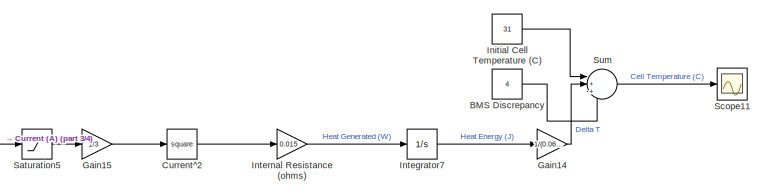
[diagram: root canvas - part 1/4, top center region]
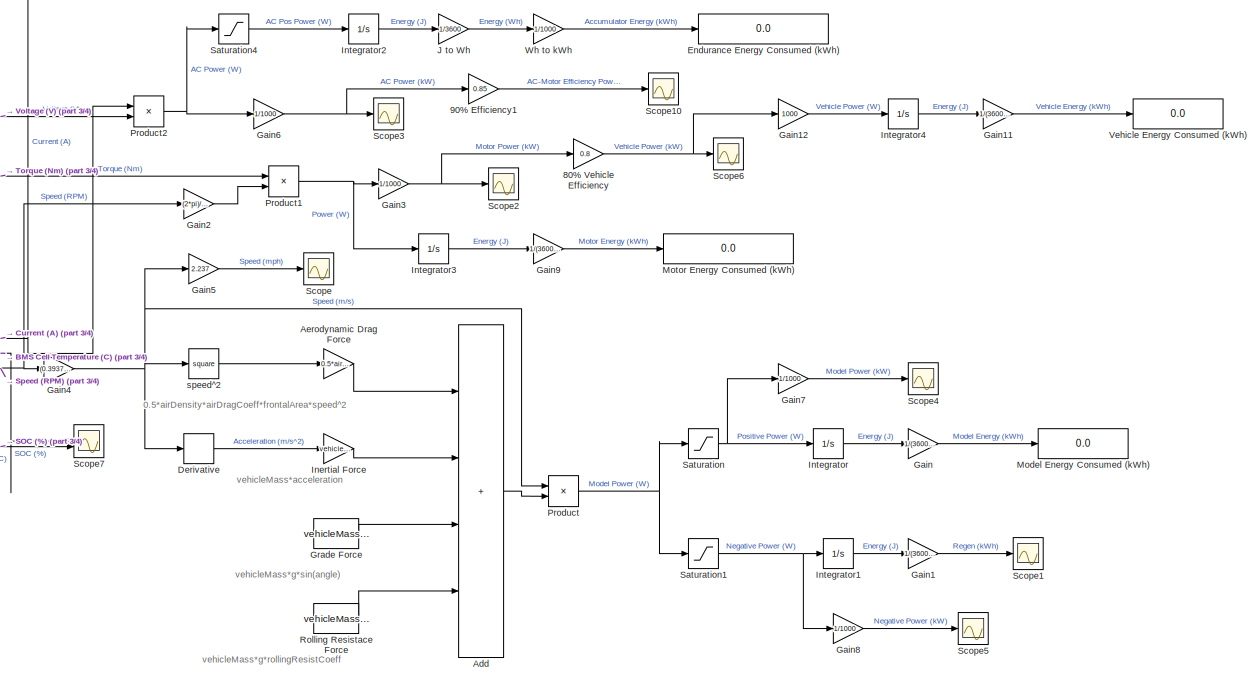
[diagram: root canvas - part 2/4, middle right region]
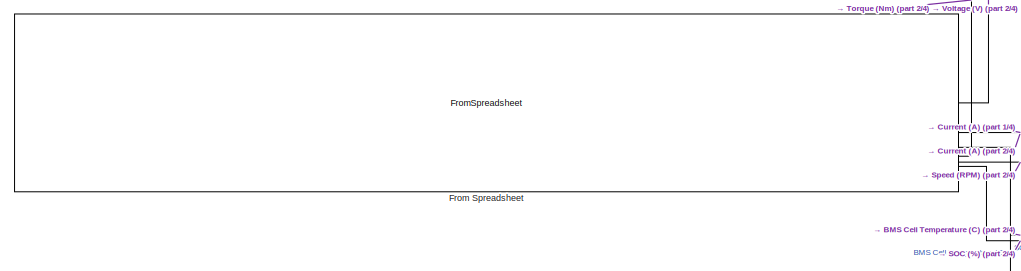
[diagram: root canvas - part 3/4, middle left region]
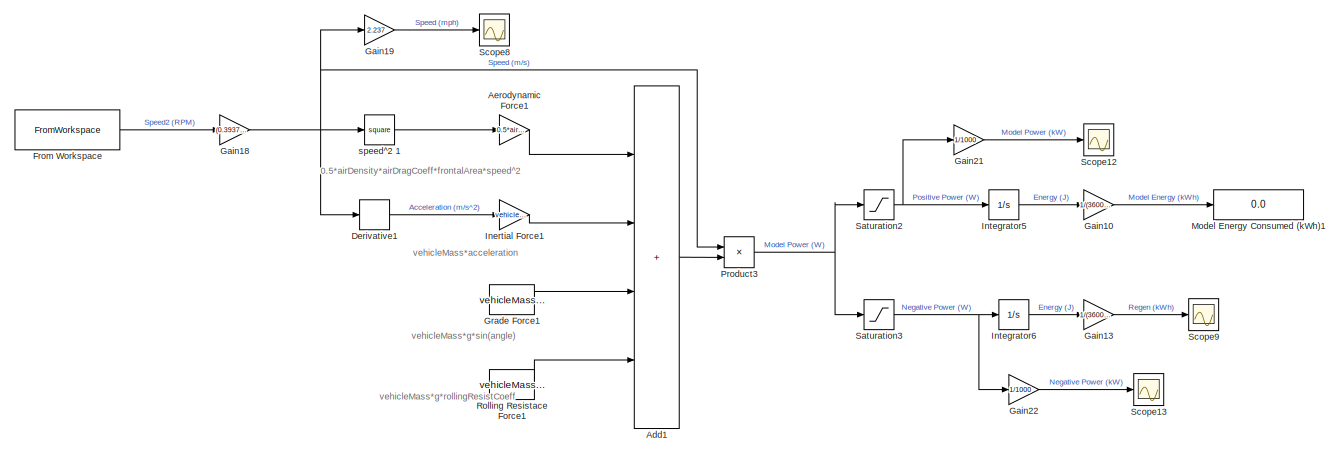
[diagram: root canvas - part 4/4, bottom center region]
MODEL slx_c957466c3ac0
KIND model
CONFIG AbsTol = auto
CONFIG EnableMultiTasking = off
CONFIG FixedStep = 0.1
CONFIG MaxStep = auto
CONFIG MinStep = auto
CONFIG RelTol = 1e-3
CONFIG SampleTimeConstraint = Unconstrained
CONFIG SolverName = FixedStepAuto
CONFIG StartTime = 503
CONFIG StopTime = 2309
BLOCK [Gain] 80% Vehicle Efficiency
  Gain = 0.8
BLOCK [Gain] 90% Efficiency1
  Gain = 0.85
BLOCK [Sum] Add
  IconShape = rectangular
  Inputs = ++++
BLOCK [Sum] Add1
  Commented = on
  IconShape = rectangular
  Inputs = ++++
BLOCK [Gain] Aerodynamic Drag Force
  Gain = 0.5*airDensity*airDragCoeff*frontalArea
BLOCK [Gain] Aerodynamic Force1
  Commented = on
  Gain = 0.5*airDensity*airDragCoeff*frontalArea
BLOCK [Constant] BMS Discrepancy
  Value = 4
BLOCK [Math] Current^2 
  Operator = square
BLOCK [Derivative] Derivative
BLOCK [Derivative] Derivative1
  Commented = on
BLOCK [Display] Endurance Energy Consumed (kWh) 
  Decimation = 1
BLOCK [FromSpreadsheet] From Spreadsheet
  FileName = <userpath>\OneDrive - University of California, Davis\Documents\FE12-Accumulator\FE12\Cell Modeling\FE11 Endurance Full Data V2.xlsx
BLOCK [FromWorkspace] From Workspace
  Commented = on
  VariableName = Speed
BLOCK [Gain] Gain
  Gain = 1/(3600*1000)
BLOCK [Gain] Gain1
  Gain = 1/(3600*1000)
BLOCK [Gain] Gain10
  Commented = on
  Gain = 1/(3600*1000)
BLOCK [Gain] Gain11
  Gain = 1/(3600*1000)
BLOCK [Gain] Gain12
  Gain = 1000
BLOCK [Gain] Gain13
  Commented = on
  Gain = 1/(3600*1000)
BLOCK [Gain] Gain14
  Gain = 1/(0.06492*1360)
BLOCK [Gain] Gain15
  Gain = 1/3
BLOCK [Gain] Gain18
  Commented = on
  Gain = (0.3937*pi)/(2.75*60)
BLOCK [Gain] Gain19
  Commented = on
  Gain = 2.237
BLOCK [Gain] Gain2
  Gain = (2*pi)/60
BLOCK [Gain] Gain21
  Commented = on
  Gain = 1/1000
BLOCK [Gain] Gain22
  Commented = on
  Gain = 1/1000
BLOCK [Gain] Gain3
  Gain = 1/1000
BLOCK [Gain] Gain4
  Gain = (0.3937*pi)/(2.75*60)
BLOCK [Gain] Gain5
  Gain = 2.237
BLOCK [Gain] Gain6
  Gain = 1/1000
BLOCK [Gain] Gain7
  Gain = 1/1000
BLOCK [Gain] Gain8
  Gain = 1/1000
BLOCK [Gain] Gain9
  Gain = 1/(3600*1000)
BLOCK [Constant] Grade Force
  Value = vehicleMass*g*sin(angle)
BLOCK [Constant] Grade Force1
  Commented = on
  Value = vehicleMass*g*sin(angle)
BLOCK [Gain] Inertial Force
  Gain = vehicleMass
BLOCK [Gain] Inertial Force1
  Commented = on
  Gain = vehicleMass
BLOCK [Constant] Initial Cell Temperature (C)
  Value = 31
BLOCK [Integrator] Integrator
BLOCK [Integrator] Integrator1
BLOCK [Integrator] Integrator2
BLOCK [Integrator] Integrator3
BLOCK [Integrator] Integrator4
BLOCK [Integrator] Integrator5
  Commented = on
BLOCK [Integrator] Integrator6
  Commented = on
BLOCK [Integrator] Integrator7
BLOCK [Gain] Internal Resistance (ohms)
  Gain = 0.015
BLOCK [Gain] J to Wh
  Gain = 1/3600
BLOCK [Display] Model Energy Consumed (kWh)
  Decimation = 1
BLOCK [Display] Model Energy Consumed (kWh)1
  Commented = on
  Decimation = 1
BLOCK [Display] Motor Energy Consumed (kWh)
  Decimation = 1
BLOCK [Product] Product
BLOCK [Product] Product1
BLOCK [Product] Product2
BLOCK [Product] Product3
  Commented = on
BLOCK [Constant] Rolling Resistace Force
  Value = vehicleMass*g*rollingResistCoeff
BLOCK [Constant] Rolling Resistace Force1
  Commented = on
  Value = vehicleMass*g*rollingResistCoeff
BLOCK [Saturate] Saturation
  LowerLimit = 0
  UpperLimit = 10^10
BLOCK [Saturate] Saturation1
  LowerLimit = -10^10
  UpperLimit = 0
BLOCK [Saturate] Saturation2
  Commented = on
  LowerLimit = 0
  UpperLimit = 10^10
BLOCK [Saturate] Saturation3
  Commented = on
  LowerLimit = -10^10
  UpperLimit = 0
BLOCK [Saturate] Saturation4
  LowerLimit = 0
  UpperLimit = 10^10
BLOCK [Saturate] Saturation5
  LowerLimit = 0
  UpperLimit = 10^10
BLOCK [Scope] Scope
  Floating = off
  NumInputPorts = 1
  ScopeSpecificationString = Simulink.scopes.TimeScopeBlockCfg('CurrentConfiguration', extmgr.ConfigurationSet(extmgr.Configuration('Core','General UI',true),extmgr.Configuration('Core','Source UI',true),extmgr.Configuration('Sources','WiredSimulink',true),extmgr.Configuration('Visuals','Time Domain',true),extmgr.Configuration('Tools','Plot Navigation',true),extmgr.Configuration('Tools','Measurements',true)),'Version','2023b'...<+1ch>
BLOCK [Scope] Scope1
  Floating = off
  NumInputPorts = 1
  ScopeSpecificationString = Simulink.scopes.TimeScopeBlockCfg('CurrentConfiguration', extmgr.ConfigurationSet(extmgr.Configuration('Core','General UI',true),extmgr.Configuration('Core','Source UI',true),extmgr.Configuration('Sources','WiredSimulink',true,'DataLoggingVariableName','ScopeData1'),extmgr.Configuration('Visuals','Time Domain',true),extmgr.Configuration('Tools','Plot Navigation',true),extmgr.Configuration('Tools',...<+40ch>  <repeated x3 — deduplicated; at blocks: Scope1, Scope10, Scope11>
BLOCK [Scope] Scope10
  Floating = off
  NumInputPorts = 1
BLOCK [Scope] Scope11
  Floating = off
  NumInputPorts = 1
BLOCK [Scope] Scope12
  Commented = on
  Floating = off
  NumInputPorts = 1
  ScopeSpecificationString = Simulink.scopes.TimeScopeBlockCfg('CurrentConfiguration', extmgr.ConfigurationSet(extmgr.Configuration('Core','General UI',true),extmgr.Configuration('Core','Source UI',true),extmgr.Configuration('Sources','WiredSimulink',true,'DataLoggingVariableName','ScopeData4'),extmgr.Configuration('Visuals','Time Domain',true),extmgr.Configuration('Tools','Plot Navigation',true),extmgr.Configuration('Tools',...<+40ch>
BLOCK [Scope] Scope13
  Commented = on
  Floating = off
  NumInputPorts = 1
  ScopeSpecificationString = Simulink.scopes.TimeScopeBlockCfg('CurrentConfiguration', extmgr.ConfigurationSet(extmgr.Configuration('Core','General UI',true),extmgr.Configuration('Core','Source UI',true),extmgr.Configuration('Sources','WiredSimulink',true,'DataLoggingVariableName','ScopeData5'),extmgr.Configuration('Visuals','Time Domain',true),extmgr.Configuration('Tools','Plot Navigation',true),extmgr.Configuration('Tools',...<+40ch>
BLOCK [Scope] Scope2
  Floating = off
  NumInputPorts = 1
  ScopeSpecificationString = Simulink.scopes.TimeScopeBlockCfg('CurrentConfiguration', extmgr.ConfigurationSet(extmgr.Configuration('Core','General UI',true),extmgr.Configuration('Core','Source UI',true),extmgr.Configuration('Sources','WiredSimulink',true,'DataLoggingVariableName','ScopeData2'),extmgr.Configuration('Visuals','Time Domain',true),extmgr.Configuration('Tools','Plot Navigation',true),extmgr.Configuration('Tools',...<+40ch>
BLOCK [Scope] Scope3
  Floating = off
  NumInputPorts = 1
  ScopeSpecificationString = Simulink.scopes.TimeScopeBlockCfg('CurrentConfiguration', extmgr.ConfigurationSet(extmgr.Configuration('Core','General UI',true),extmgr.Configuration('Core','Source UI',true),extmgr.Configuration('Sources','WiredSimulink',true,'DataLoggingVariableName','ScopeData4'),extmgr.Configuration('Visuals','Time Domain',true),extmgr.Configuration('Tools','Plot Navigation',true),extmgr.Configuration('Tools',...<+40ch>
BLOCK [Scope] Scope4
  Floating = off
  NumInputPorts = 1
  ScopeSpecificationString = Simulink.scopes.TimeScopeBlockCfg('CurrentConfiguration', extmgr.ConfigurationSet(extmgr.Configuration('Core','General UI',true),extmgr.Configuration('Core','Source UI',true),extmgr.Configuration('Sources','WiredSimulink',true,'DataLoggingVariableName','ScopeData3'),extmgr.Configuration('Visuals','Time Domain',true),extmgr.Configuration('Tools','Plot Navigation',true),extmgr.Configuration('Tools',...<+40ch>
BLOCK [Scope] Scope5
  Floating = off
  NumInputPorts = 1
  ScopeSpecificationString = Simulink.scopes.TimeScopeBlockCfg('CurrentConfiguration', extmgr.ConfigurationSet(extmgr.Configuration('Core','General UI',true),extmgr.Configuration('Core','Source UI',true),extmgr.Configuration('Sources','WiredSimulink',true,'DataLoggingVariableName','ScopeData5'),extmgr.Configuration('Visuals','Time Domain',true),extmgr.Configuration('Tools','Plot Navigation',true),extmgr.Configuration('Tools',...<+40ch>
BLOCK [Scope] Scope6
  Floating = off
  NumInputPorts = 1
  ScopeSpecificationString = Simulink.scopes.TimeScopeBlockCfg('CurrentConfiguration', extmgr.ConfigurationSet(extmgr.Configuration('Core','General UI',true),extmgr.Configuration('Core','Source UI',true),extmgr.Configuration('Sources','WiredSimulink',true,'DataLoggingVariableName','ScopeData6'),extmgr.Configuration('Visuals','Time Domain',true),extmgr.Configuration('Tools','Plot Navigation',true),extmgr.Configuration('Tools',...<+40ch>
BLOCK [Scope] Scope7
  Floating = off
  NumInputPorts = 2
  ScopeSpecificationString = Simulink.scopes.TimeScopeBlockCfg('CurrentConfiguration', extmgr.ConfigurationSet(extmgr.Configuration('Core','General UI',true),extmgr.Configuration('Core','Source UI',true),extmgr.Configuration('Sources','WiredSimulink',true,'DataLoggingVariableName','ScopeData1'),extmgr.Configuration('Visuals','Time Domain',true,'SerializedDisplays',{struct('MinYLimReal','22.5','MaxYLimReal','107.5','YLabelReal...<+1515ch>
BLOCK [Scope] Scope8
  Commented = on
  Floating = off
  NumInputPorts = 1
  ScopeSpecificationString = Simulink.scopes.TimeScopeBlockCfg('CurrentConfiguration', extmgr.ConfigurationSet(extmgr.Configuration('Core','General UI',true),extmgr.Configuration('Core','Source UI',true),extmgr.Configuration('Sources','WiredSimulink',true,'DataLoggingVariableName','ScopeData8'),extmgr.Configuration('Visuals','Time Domain',true),extmgr.Configuration('Tools','Plot Navigation',true),extmgr.Configuration('Tools',...<+40ch>
BLOCK [Scope] Scope9
  Commented = on
  Floating = off
  NumInputPorts = 1
  ScopeSpecificationString = Simulink.scopes.TimeScopeBlockCfg('CurrentConfiguration', extmgr.ConfigurationSet(extmgr.Configuration('Core','General UI',true),extmgr.Configuration('Core','Source UI',true),extmgr.Configuration('Sources','WiredSimulink',true,'DataLoggingVariableName','ScopeData9'),extmgr.Configuration('Visuals','Time Domain',true),extmgr.Configuration('Tools','Plot Navigation',true),extmgr.Configuration('Tools',...<+40ch>
BLOCK [Sum] Sum
  Inputs = |+++
BLOCK [Display] Vehicle Energy Consumed (kWh)
  Decimation = 1
BLOCK [Gain] Wh to kWh
  Gain = 1/1000
BLOCK [Math] speed^2 
  Operator = square
BLOCK [Math] speed^2 1
  Commented = on
  Operator = square
ANNOTATION (root): 0.5*airDensity*airDragCoeff*frontalArea*speed^2
ANNOTATION (root): vehicleMass*acceleration
ANNOTATION (root): vehicleMass*g*rollingResistCoeff
ANNOTATION (root): vehicleMass*g*sin(angle)
NET 80% Vehicle Efficiency:1 -> Gain12:1, Scope6:1
LINE 90% Efficiency1:1 -> Scope10:1
LINE Add1:1 -> Product3:2
LINE Add:1 -> Product:2
LINE Aerodynamic Drag Force:1 -> Add:1
LINE Aerodynamic Force1:1 -> Add1:1
LINE BMS Discrepancy:1 -> Sum:3
LINE Current^2 :1 -> Internal Resistance (ohms):1
LINE Derivative1:1 -> Inertial Force1:1
LINE Derivative:1 -> Inertial Force:1
LINE From Spreadsheet:1 -> Product2:2
NET From Spreadsheet:2 -> Product2:1, Saturation5:1
LINE From Spreadsheet:3 -> Scope7:1
LINE From Spreadsheet:4 -> Product1:1
NET From Spreadsheet:5 -> Gain2:1, Gain4:1
LINE From Spreadsheet:6 -> Scope7:2
LINE From Workspace:1 -> Gain18:1
LINE Gain10:1 -> Model Energy Consumed (kWh)1:1
LINE Gain11:1 -> Vehicle Energy Consumed (kWh):1
LINE Gain12:1 -> Integrator4:1
LINE Gain13:1 -> Scope9:1
LINE Gain14:1 -> Sum:2
LINE Gain15:1 -> Current^2 :1
NET Gain18:1 -> Derivative1:1, Gain19:1, Product3:1, speed^2 1:1
LINE Gain19:1 -> Scope8:1
LINE Gain1:1 -> Scope1:1
LINE Gain21:1 -> Scope12:1
LINE Gain22:1 -> Scope13:1
LINE Gain2:1 -> Product1:2
NET Gain3:1 -> 80% Vehicle Efficiency:1, Scope2:1
NET Gain4:1 -> Derivative:1, Gain5:1, Product:1, speed^2 :1
LINE Gain5:1 -> Scope:1
NET Gain6:1 -> 90% Efficiency1:1, Scope3:1
LINE Gain7:1 -> Scope4:1
LINE Gain8:1 -> Scope5:1
LINE Gain9:1 -> Motor Energy Consumed (kWh):1
LINE Gain:1 -> Model Energy Consumed (kWh):1
LINE Grade Force1:1 -> Add1:3
LINE Grade Force:1 -> Add:3
LINE Inertial Force1:1 -> Add1:2
LINE Inertial Force:1 -> Add:2
LINE Initial Cell Temperature (C):1 -> Sum:1
LINE Integrator1:1 -> Gain1:1
LINE Integrator2:1 -> J to Wh:1
LINE Integrator3:1 -> Gain9:1
LINE Integrator4:1 -> Gain11:1
LINE Integrator5:1 -> Gain10:1
LINE Integrator6:1 -> Gain13:1
LINE Integrator7:1 -> Gain14:1
LINE Integrator:1 -> Gain:1
LINE Internal Resistance (ohms):1 -> Integrator7:1
LINE J to Wh:1 -> Wh to kWh:1
NET Product1:1 -> Gain3:1, Integrator3:1
NET Product2:1 -> Gain6:1, Saturation4:1
NET Product3:1 -> Saturation2:1, Saturation3:1
NET Product:1 -> Saturation1:1, Saturation:1
LINE Rolling Resistace Force1:1 -> Add1:4
LINE Rolling Resistace Force:1 -> Add:4
NET Saturation1:1 -> Gain8:1, Integrator1:1
NET Saturation2:1 -> Gain21:1, Integrator5:1
NET Saturation3:1 -> Gain22:1, Integrator6:1
LINE Saturation4:1 -> Integrator2:1
LINE Saturation5:1 -> Gain15:1
NET Saturation:1 -> Gain7:1, Integrator:1
LINE Sum:1 -> Scope11:1
LINE Wh to kWh:1 -> Endurance Energy Consumed (kWh) :1
LINE speed^2 1:1 -> Aerodynamic Force1:1
LINE speed^2 :1 -> Aerodynamic Drag Force:1
note: NET lines group one-source signal fan-out (src -> all destinations, sorted); 1:1 wires keep LINE
